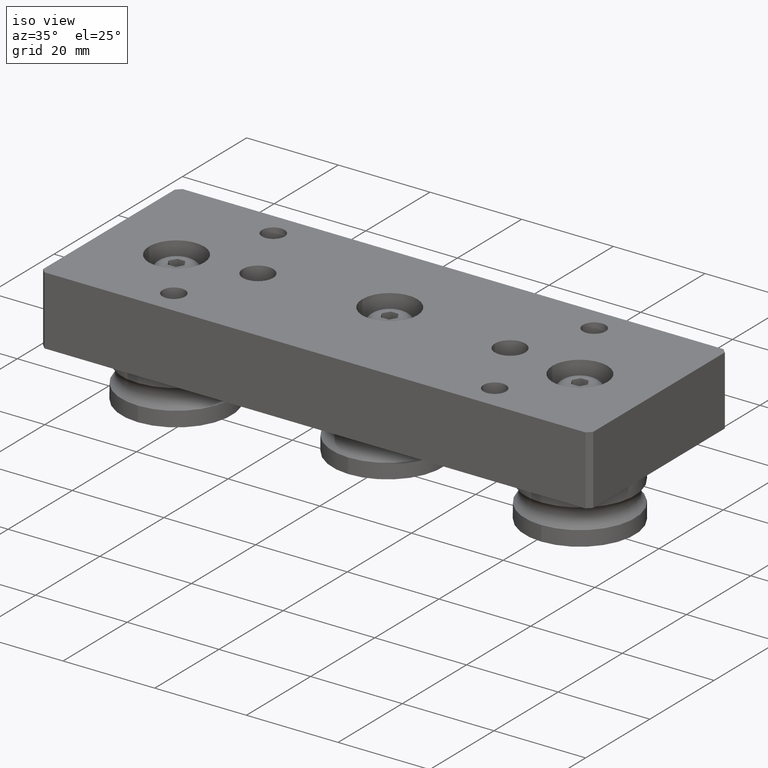
[diagram: clean part render]
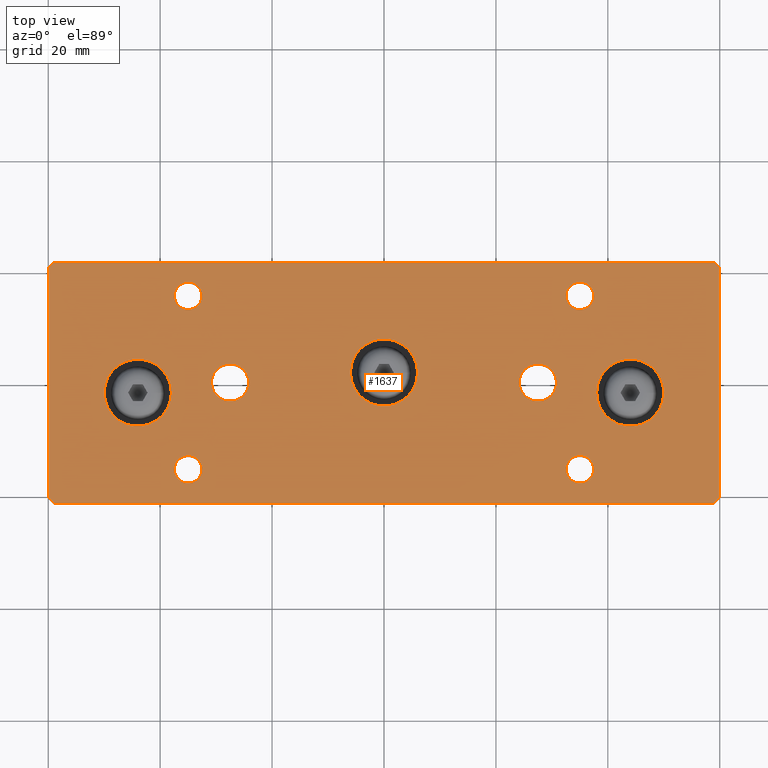
[diagram: tour spotlight — one face highlighted and labeled with its STEP entity id]
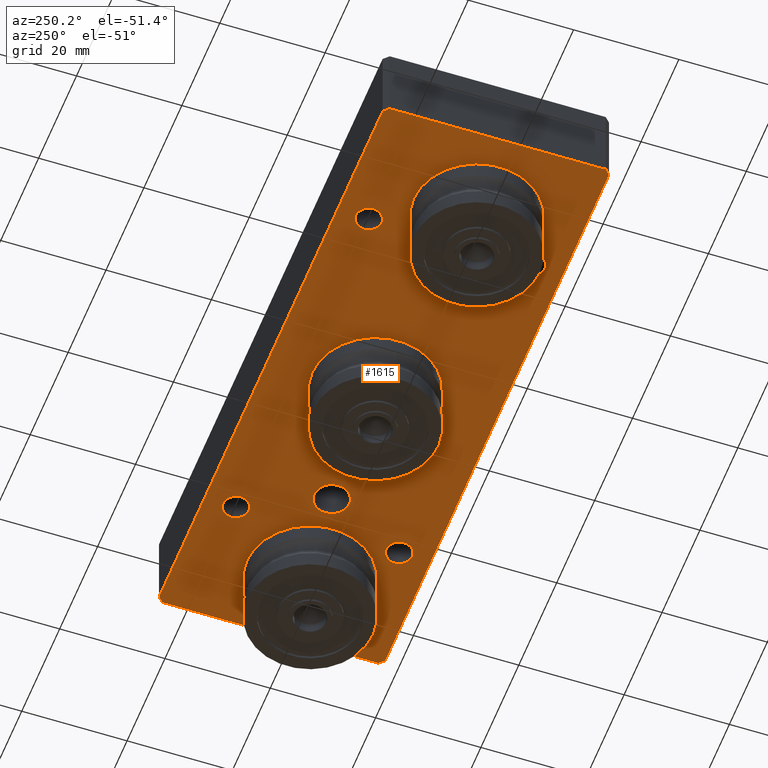
[diagram: tour spotlight — one face highlighted and labeled with its STEP entity id]
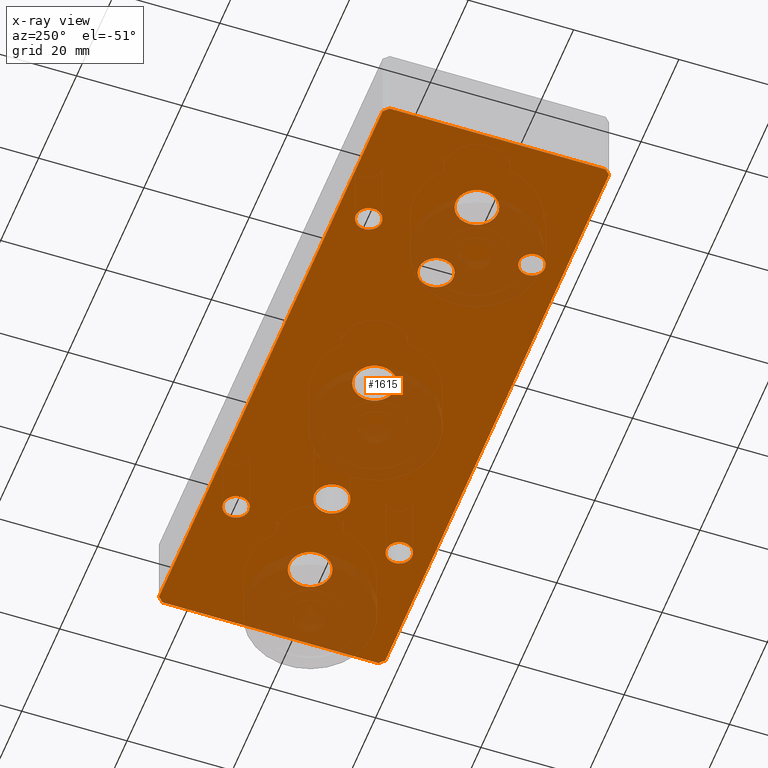
[diagram: x-ray of the same camera — body ghosted, this tour face saturated]
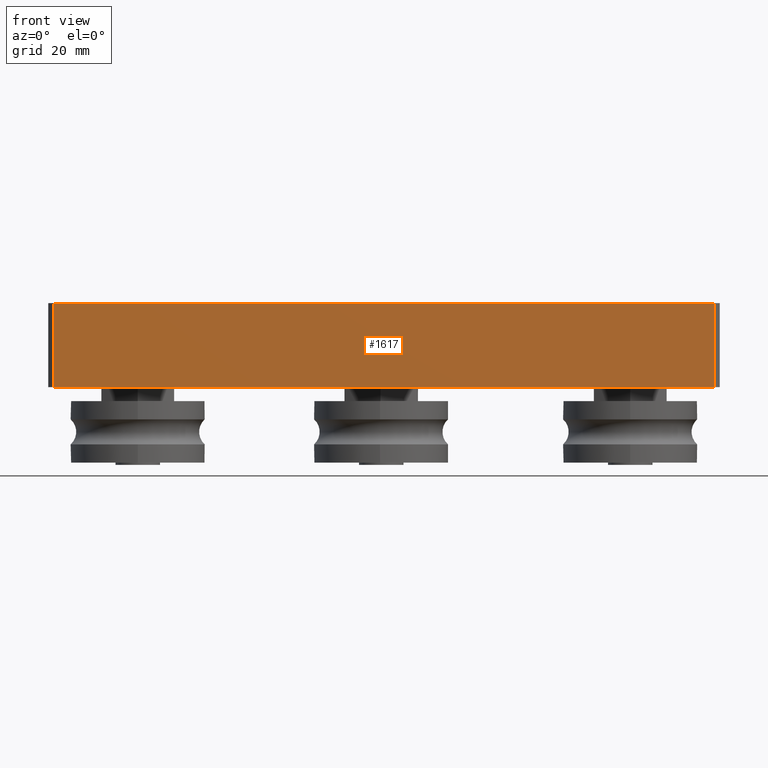
[diagram: tour spotlight — one face highlighted and labeled with its STEP entity id]
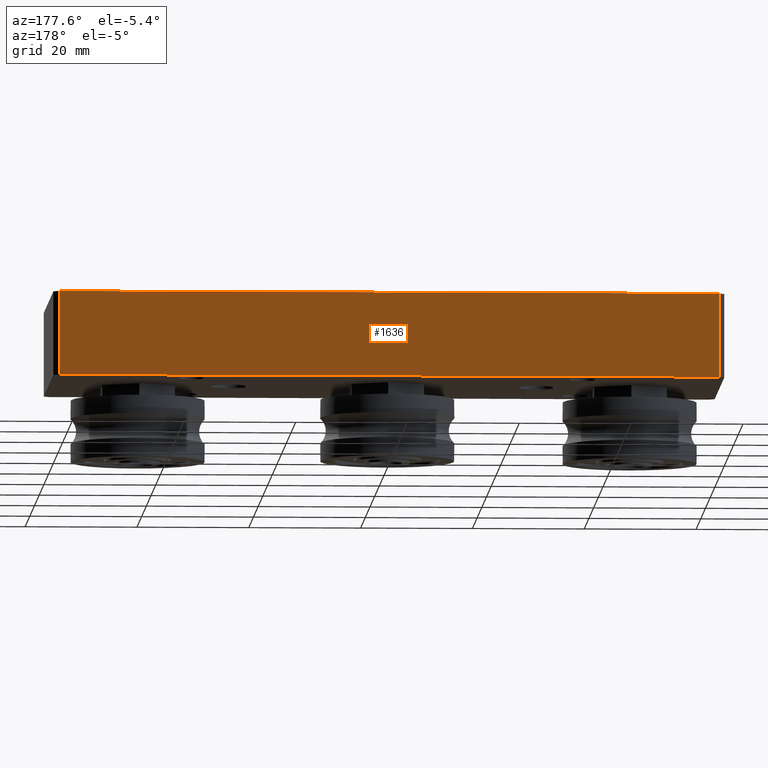
[diagram: tour spotlight — one face highlighted and labeled with its STEP entity id]
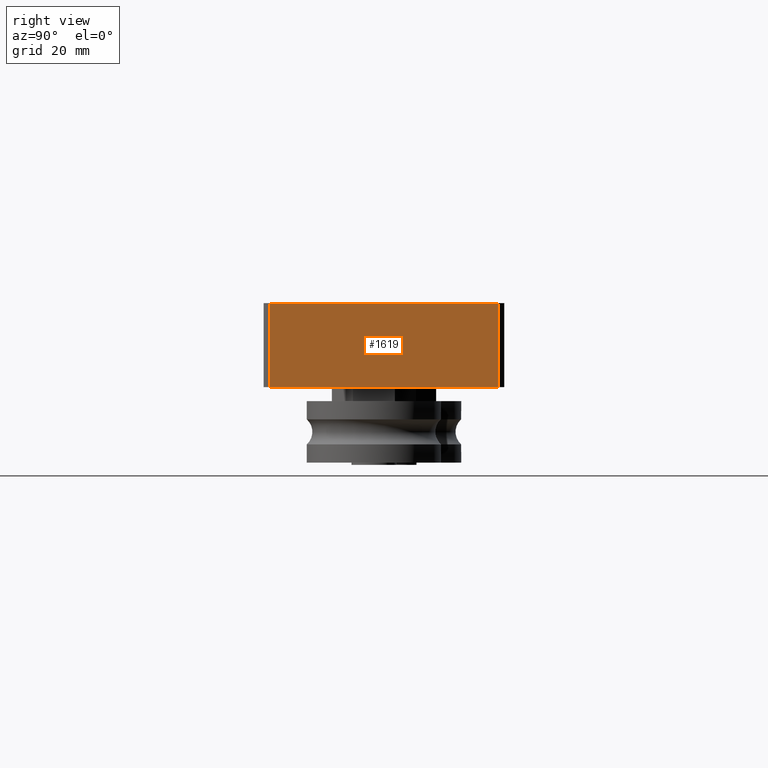
[diagram: tour spotlight — one face highlighted and labeled with its STEP entity id]
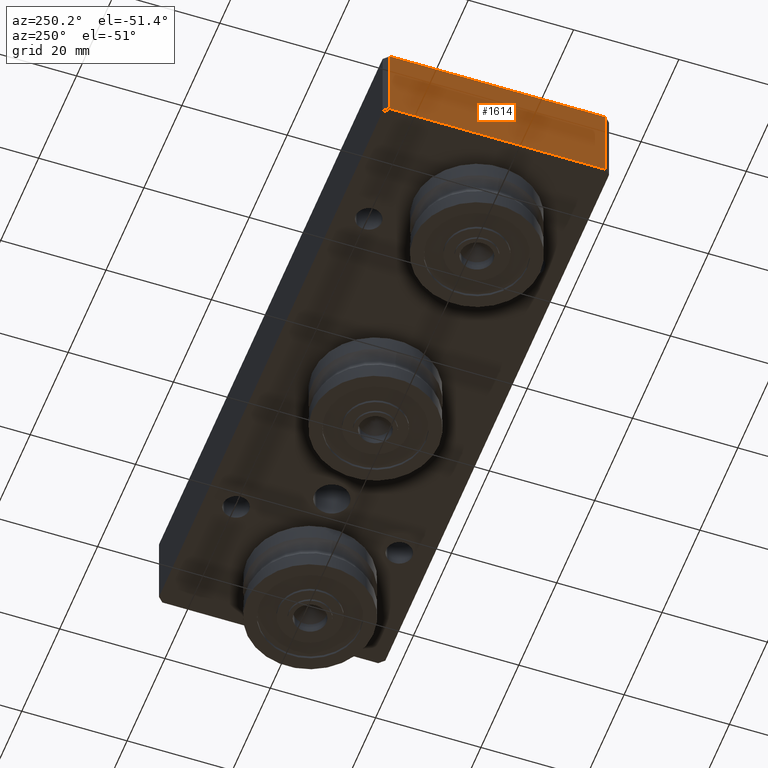
[diagram: tour spotlight — one face highlighted and labeled with its STEP entity id]
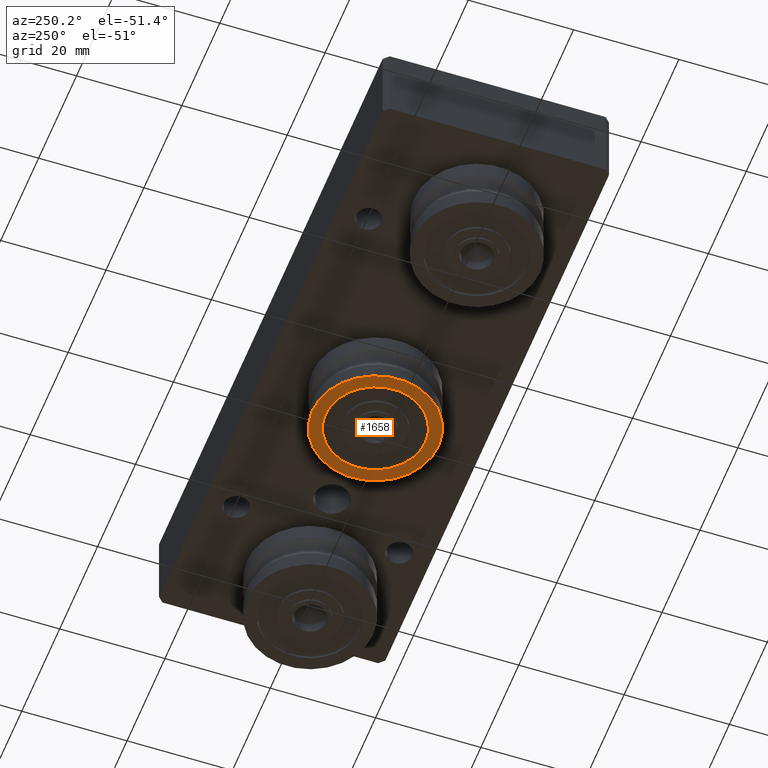
[diagram: tour spotlight — one face highlighted and labeled with its STEP entity id]
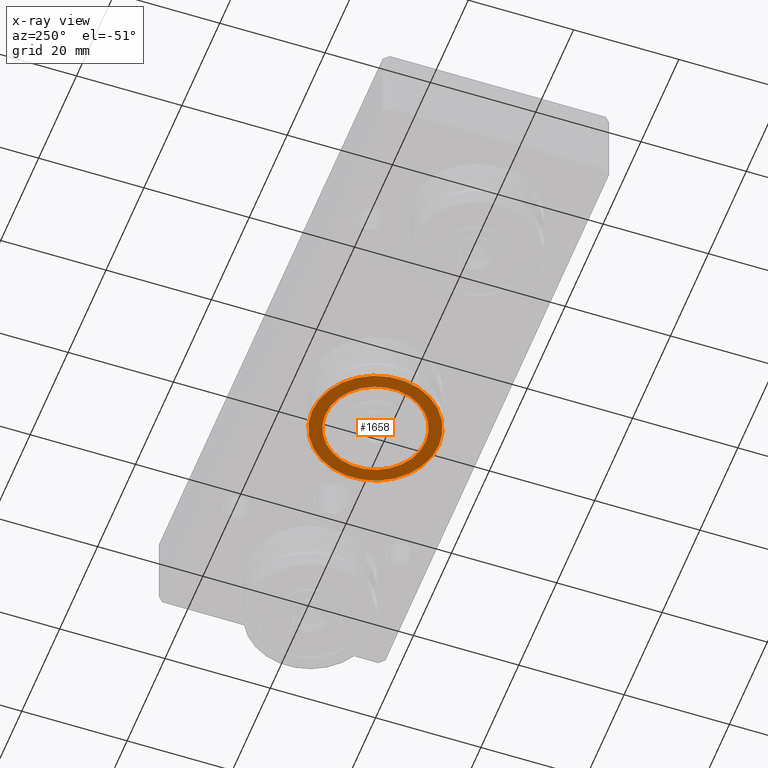
[diagram: x-ray of the same camera — body ghosted, this tour face saturated]
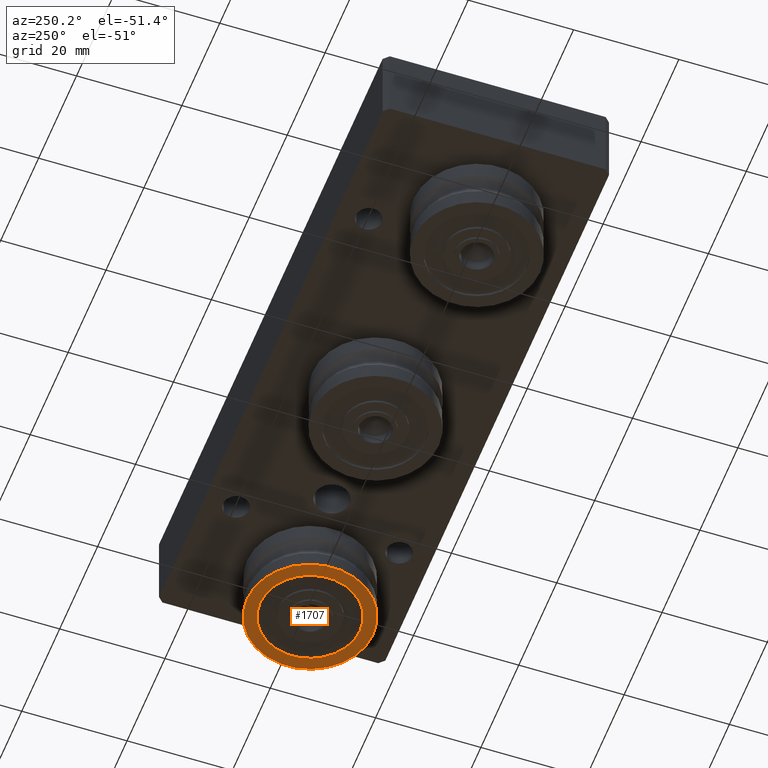
[diagram: tour spotlight — one face highlighted and labeled with its STEP entity id]
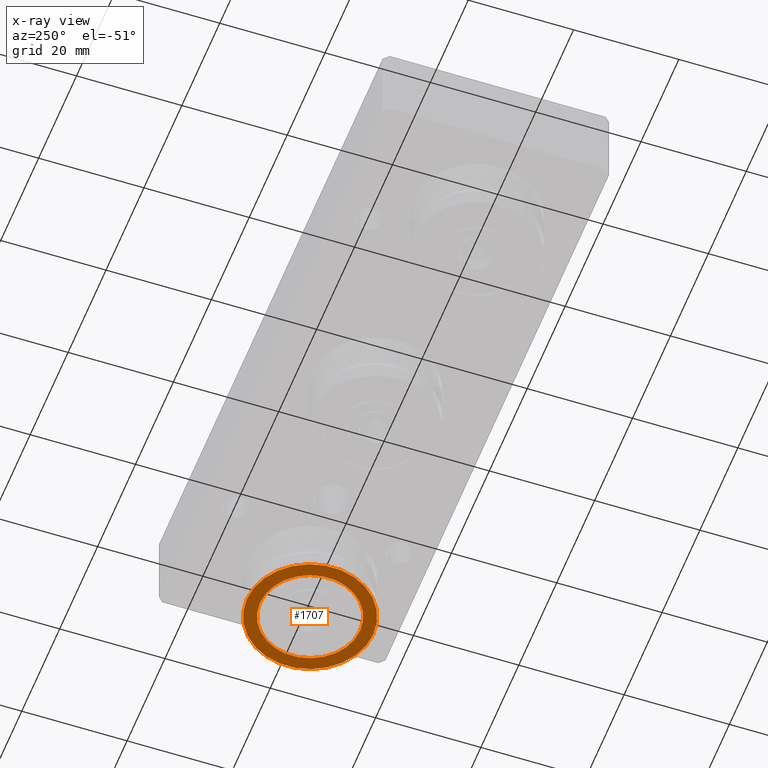
[diagram: x-ray of the same camera — body ghosted, this tour face saturated]
A machine part: a face-by-face anatomy tour. The part has 172 B-rep faces; the first image is the clean iso view, then the 8 largest visible faces are spotlighted one at a time (largest first), each with its STEP entity span.

Face 1 — top view, entity #1637. In plain terms, the highlighted planar face has unit normal (0, 0, 1).
Definition (entity closure, byte-faithful):
#166=FACE_BOUND('',#430,.T.);
#167=FACE_BOUND('',#431,.T.);
#168=FACE_BOUND('',#432,.T.);
#169=FACE_BOUND('',#433,.T.);
#170=FACE_BOUND('',#434,.T.);
#171=FACE_BOUND('',#435,.T.);
#172=FACE_BOUND('',#436,.T.);
#173=FACE_BOUND('',#437,.T.);
#174=FACE_BOUND('',#438,.T.);
#208=CIRCLE('',#1948,2.4585);
#209=CIRCLE('',#1950,2.4585);
#210=CIRCLE('',#1952,2.4585);
#211=CIRCLE('',#1954,2.4585);
#212=CIRCLE('',#1956,3.3235);
#213=CIRCLE('',#1958,3.3235);
#216=CIRCLE('',#1963,6.);
#219=CIRCLE('',#1969,6.);
#222=CIRCLE('',#1975,6.);
#313=FACE_OUTER_BOUND('',#429,.T.);
#429=EDGE_LOOP('',(#1234,#1235,#1236,#1237,#1238,#1239,#1240,#1241));
#430=EDGE_LOOP('',(#1242));
#431=EDGE_LOOP('',(#1243));
#432=EDGE_LOOP('',(#1244));
#433=EDGE_LOOP('',(#1245));
#434=EDGE_LOOP('',(#1246));
#435=EDGE_LOOP('',(#1247));
#436=EDGE_LOOP('',(#1248));
#437=EDGE_LOOP('',(#1249));
#438=EDGE_LOOP('',(#1250));
#542=LINE('',#2703,#658);
#548=LINE('',#2714,#664);
#556=LINE('',#2748,#672);
#558=LINE('',#2752,#674);
#559=LINE('',#2756,#675);
#562=LINE('',#2761,#678);
#564=LINE('',#2764,#680);
#577=LINE('',#2823,#693);
#658=VECTOR('',#2152,10.);
#664=VECTOR('',#2160,10.);
#672=VECTOR('',#2190,10.);
#674=VECTOR('',#2194,10.);
#675=VECTOR('',#2197,10.);
#678=VECTOR('',#2202,10.);
#680=VECTOR('',#2206,10.);
#693=VECTOR('',#2281,10.);
#774=VERTEX_POINT('',#2701);
#775=VERTEX_POINT('',#2702);
#779=VERTEX_POINT('',#2712);
#794=VERTEX_POINT('',#2746);
#795=VERTEX_POINT('',#2750);
#796=VERTEX_POINT('',#2754);
#797=VERTEX_POINT('',#2755);
#798=VERTEX_POINT('',#2760);
#799=VERTEX_POINT('',#2766);
#800=VERTEX_POINT('',#2770);
#801=VERTEX_POINT('',#2774);
#802=VERTEX_POINT('',#2778);
#803=VERTEX_POINT('',#2782);
#804=VERTEX_POINT('',#2786);
#807=VERTEX_POINT('',#2795);
#810=VERTEX_POINT('',#2806);
#813=VERTEX_POINT('',#2817);
#918=EDGE_CURVE('',#774,#775,#542,.T.);
#924=EDGE_CURVE('',#774,#779,#548,.T.);
#941=EDGE_CURVE('',#794,#779,#556,.T.);
#943=EDGE_CURVE('',#794,#795,#558,.T.);
#944=EDGE_CURVE('',#796,#797,#559,.T.);
#947=EDGE_CURVE('',#798,#797,#562,.T.);
#949=EDGE_CURVE('',#798,#795,#564,.T.);
#950=EDGE_CURVE('',#799,#799,#208,.T.);
#952=EDGE_CURVE('',#800,#800,#209,.T.);
#954=EDGE_CURVE('',#801,#801,#210,.T.);
#956=EDGE_CURVE('',#802,#802,#211,.T.);
#958=EDGE_CURVE('',#803,#803,#212,.T.);
#960=EDGE_CURVE('',#804,#804,#213,.T.);
#964=EDGE_CURVE('',#807,#807,#216,.T.);
#969=EDGE_CURVE('',#810,#810,#219,.T.);
#974=EDGE_CURVE('',#813,#813,#222,.T.);
#977=EDGE_CURVE('',#796,#775,#577,.T.);
#1234=ORIENTED_EDGE('',*,*,#918,.F.);
#1235=ORIENTED_EDGE('',*,*,#924,.T.);
#1236=ORIENTED_EDGE('',*,*,#941,.F.);
#1237=ORIENTED_EDGE('',*,*,#943,.T.);
#1238=ORIENTED_EDGE('',*,*,#949,.F.);
#1239=ORIENTED_EDGE('',*,*,#947,.T.);
#1240=ORIENTED_EDGE('',*,*,#944,.F.);
#1241=ORIENTED_EDGE('',*,*,#977,.T.);
#1242=ORIENTED_EDGE('',*,*,#950,.T.);
#1243=ORIENTED_EDGE('',*,*,#952,.T.);
#1244=ORIENTED_EDGE('',*,*,#954,.T.);
#1245=ORIENTED_EDGE('',*,*,#956,.T.);
#1246=ORIENTED_EDGE('',*,*,#958,.T.);
#1247=ORIENTED_EDGE('',*,*,#960,.T.);
#1248=ORIENTED_EDGE('',*,*,#964,.T.);
#1249=ORIENTED_EDGE('',*,*,#969,.T.);
#1250=ORIENTED_EDGE('',*,*,#974,.T.);
#1569=PLANE('',#1978);
#1637=ADVANCED_FACE('',(#313,#166,#167,#168,#169,#170,#171,#172,#173,#174),
#1569,.T.);
#1948=AXIS2_PLACEMENT_3D('',#2767,#2209,#2210);
#1950=AXIS2_PLACEMENT_3D('',#2771,#2214,#2215);
#1952=AXIS2_PLACEMENT_3D('',#2775,#2219,#2220);
#1954=AXIS2_PLACEMENT_3D('',#2779,#2224,#2225);
#1956=AXIS2_PLACEMENT_3D('',#2783,#2229,#2230);
#1958=AXIS2_PLACEMENT_3D('',#2787,#2234,#2235);
#1963=AXIS2_PLACEMENT_3D('',#2796,#2245,#2246);
#1969=AXIS2_PLACEMENT_3D('',#2807,#2259,#2260);
#1975=AXIS2_PLACEMENT_3D('',#2818,#2273,#2274);
#1978=AXIS2_PLACEMENT_3D('',#2824,#2282,#2283);
#2152=DIRECTION('',(0.707106781186548,0.707106781186548,0.));
#2160=DIRECTION('',(4.13106241720989E-16,-1.,0.));
#2190=DIRECTION('',(-0.707106781186546,0.707106781186549,0.));
#2194=DIRECTION('',(1.,0.,0.));
#2197=DIRECTION('',(0.707106781186546,-0.707106781186549,0.));
#2202=DIRECTION('',(0.,1.,0.));
#2206=DIRECTION('',(-0.707106781186546,-0.707106781186549,0.));
#2209=DIRECTION('center_axis',(0.,0.,-1.));
#2210=DIRECTION('ref_axis',(1.,0.,0.));
#2214=DIRECTION('center_axis',(0.,0.,-1.));
#2215=DIRECTION('ref_axis',(1.,0.,0.));
#2219=DIRECTION('center_axis',(0.,0.,-1.));
#2220=DIRECTION('ref_axis',(1.,0.,0.));
#2224=DIRECTION('center_axis',(0.,0.,-1.));
#2225=DIRECTION('ref_axis',(1.,0.,0.));
#2229=DIRECTION('center_axis',(0.,0.,-1.));
#2230=DIRECTION('ref_axis',(1.,0.,0.));
#2234=DIRECTION('center_axis',(0.,0.,-1.));
#2235=DIRECTION('ref_axis',(1.,0.,0.));
#2245=DIRECTION('center_axis',(0.,0.,-1.));
#2246=DIRECTION('ref_axis',(1.,0.,0.));
#2259=DIRECTION('center_axis',(0.,0.,-1.));
#2260=DIRECTION('ref_axis',(1.,0.,0.));
#2273=DIRECTION('center_axis',(0.,0.,-1.));
#2274=DIRECTION('ref_axis',(1.,0.,0.));
#2281=DIRECTION('',(-1.,-1.11022302462516E-16,0.));
#2282=DIRECTION('center_axis',(0.,0.,1.));
#2283=DIRECTION('ref_axis',(1.,0.,0.));
#2701=CARTESIAN_POINT('',(-60.,20.5,7.5));
#2702=CARTESIAN_POINT('',(-59.,21.5,7.5));
#2703=CARTESIAN_POINT('',(-49.875,30.625,7.5));
#2712=CARTESIAN_POINT('',(-60.,-20.5,7.5));
#2714=CARTESIAN_POINT('',(-60.,21.5,7.5));
#2746=CARTESIAN_POINT('',(-59.,-21.5,7.5));
#2748=CARTESIAN_POINT('',(-49.875,-30.625,7.5));
#2750=CARTESIAN_POINT('',(59.,-21.5,7.5));
#2752=CARTESIAN_POINT('',(-60.,-21.5,7.5));
#2754=CARTESIAN_POINT('',(59.,21.5,7.5));
#2755=CARTESIAN_POINT('',(60.,20.5,7.5));
#2756=CARTESIAN_POINT('',(49.8750000000001,30.625,7.5));
#2760=CARTESIAN_POINT('',(60.,-20.5,7.5));
#2761=CARTESIAN_POINT('',(60.,-21.5,7.5));
#2764=CARTESIAN_POINT('',(49.8750000000001,-30.625,7.5));
#2766=CARTESIAN_POINT('',(32.5415,15.5,7.5));
#2767=CARTESIAN_POINT('Origin',(35.,15.5,7.5));
#2770=CARTESIAN_POINT('',(-37.4585,15.5,7.5));
#2771=CARTESIAN_POINT('Origin',(-35.,15.5,7.5));
#2774=CARTESIAN_POINT('',(-37.4585,-15.5,7.5));
#2775=CARTESIAN_POINT('Origin',(-35.,-15.5,7.5));
#2778=CARTESIAN_POINT('',(32.5415,-15.5,7.5));
#2779=CARTESIAN_POINT('Origin',(35.,-15.5,7.5));
#2782=CARTESIAN_POINT('',(-30.8235,-4.07011363696623E-16,7.5));
#2783=CARTESIAN_POINT('Origin',(-27.5,0.,7.5));
#2786=CARTESIAN_POINT('',(24.1765,8.47477283330463E-15,7.5));
#2787=CARTESIAN_POINT('Origin',(27.5,8.88178419700125E-15,7.5));
#2795=CARTESIAN_POINT('',(-6.,1.8,7.5));
#2796=CARTESIAN_POINT('Origin',(0.,1.8,7.5));
#2806=CARTESIAN_POINT('',(-50.,-1.8,7.5));
#2807=CARTESIAN_POINT('Origin',(-44.,-1.8,7.5));
#2817=CARTESIAN_POINT('',(38.,-1.8,7.5));
#2818=CARTESIAN_POINT('Origin',(44.,-1.8,7.5));
#2823=CARTESIAN_POINT('',(60.,21.5,7.5));
#2824=CARTESIAN_POINT('Origin',(2.66453525910038E-14,0.,7.5));

Face 2 — auxiliary view, entity #1615. An x-ray twin of the same camera follows (body ghosted, this face saturated) — the face is partly hidden behind the body. In plain terms, the highlighted planar face has unit normal (0, 0, -1).
Definition (entity closure, byte-faithful):
#154=FACE_BOUND('',#396,.T.);
#155=FACE_BOUND('',#397,.T.);
#156=FACE_BOUND('',#398,.T.);
#157=FACE_BOUND('',#399,.T.);
#158=FACE_BOUND('',#400,.T.);
#159=FACE_BOUND('',#401,.T.);
#160=FACE_BOUND('',#402,.T.);
#161=FACE_BOUND('',#403,.T.);
#162=FACE_BOUND('',#404,.T.);
#199=CIRCLE('',#1933,2.4585);
#200=CIRCLE('',#1934,2.4585);
#201=CIRCLE('',#1935,2.4585);
#202=CIRCLE('',#1936,2.4585);
#203=CIRCLE('',#1937,3.3235);
#204=CIRCLE('',#1938,3.3235);
#205=CIRCLE('',#1939,4.);
#206=CIRCLE('',#1940,4.);
#207=CIRCLE('',#1941,4.);
#291=FACE_OUTER_BOUND('',#395,.T.);
#395=EDGE_LOOP('',(#1139,#1140,#1141,#1142,#1143,#1144,#1145,#1146));
#396=EDGE_LOOP('',(#1147));
#397=EDGE_LOOP('',(#1148));
#398=EDGE_LOOP('',(#1149));
#399=EDGE_LOOP('',(#1150));
#400=EDGE_LOOP('',(#1151));
#401=EDGE_LOOP('',(#1152));
#402=EDGE_LOOP('',(#1153));
#403=EDGE_LOOP('',(#1154));
#404=EDGE_LOOP('',(#1155));
#544=LINE('',#2707,#660);
#546=LINE('',#2711,#662);
#549=LINE('',#2717,#665);
#550=LINE('',#2719,#666);
#551=LINE('',#2721,#667);
#552=LINE('',#2723,#668);
#553=LINE('',#2725,#669);
#554=LINE('',#2726,#670);
#660=VECTOR('',#2154,10.);
#662=VECTOR('',#2158,10.);
#665=VECTOR('',#2163,10.);
#666=VECTOR('',#2164,10.);
#667=VECTOR('',#2165,10.);
#668=VECTOR('',#2166,10.);
#669=VECTOR('',#2167,10.);
#670=VECTOR('',#2168,10.);
#776=VERTEX_POINT('',#2704);
#777=VERTEX_POINT('',#2706);
#778=VERTEX_POINT('',#2710);
#780=VERTEX_POINT('',#2716);
#781=VERTEX_POINT('',#2718);
#782=VERTEX_POINT('',#2720);
#783=VERTEX_POINT('',#2722);
#784=VERTEX_POINT('',#2724);
#785=VERTEX_POINT('',#2727);
#786=VERTEX_POINT('',#2729);
#787=VERTEX_POINT('',#2731);
#788=VERTEX_POINT('',#2733);
#789=VERTEX_POINT('',#2735);
#790=VERTEX_POINT('',#2737);
#791=VERTEX_POINT('',#2739);
#792=VERTEX_POINT('',#2741);
#793=VERTEX_POINT('',#2743);
#920=EDGE_CURVE('',#776,#777,#544,.T.);
#922=EDGE_CURVE('',#778,#777,#546,.T.);
#925=EDGE_CURVE('',#776,#780,#549,.T.);
#926=EDGE_CURVE('',#781,#780,#550,.T.);
#927=EDGE_CURVE('',#781,#782,#551,.T.);
#928=EDGE_CURVE('',#783,#782,#552,.T.);
#929=EDGE_CURVE('',#783,#784,#553,.T.);
#930=EDGE_CURVE('',#778,#784,#554,.T.);
#931=EDGE_CURVE('',#785,#785,#199,.T.);
#932=EDGE_CURVE('',#786,#786,#200,.T.);
#933=EDGE_CURVE('',#787,#787,#201,.T.);
#934=EDGE_CURVE('',#788,#788,#202,.T.);
#935=EDGE_CURVE('',#789,#789,#203,.T.);
#936=EDGE_CURVE('',#790,#790,#204,.T.);
#937=EDGE_CURVE('',#791,#791,#205,.T.);
#938=EDGE_CURVE('',#792,#792,#206,.T.);
#939=EDGE_CURVE('',#793,#793,#207,.T.);
#1139=ORIENTED_EDGE('',*,*,#920,.F.);
#1140=ORIENTED_EDGE('',*,*,#925,.T.);
#1141=ORIENTED_EDGE('',*,*,#926,.F.);
#1142=ORIENTED_EDGE('',*,*,#927,.T.);
#1143=ORIENTED_EDGE('',*,*,#928,.F.);
#1144=ORIENTED_EDGE('',*,*,#929,.T.);
#1145=ORIENTED_EDGE('',*,*,#930,.F.);
#1146=ORIENTED_EDGE('',*,*,#922,.T.);
#1147=ORIENTED_EDGE('',*,*,#931,.T.);
#1148=ORIENTED_EDGE('',*,*,#932,.T.);
#1149=ORIENTED_EDGE('',*,*,#933,.T.);
#1150=ORIENTED_EDGE('',*,*,#934,.T.);
#1151=ORIENTED_EDGE('',*,*,#935,.T.);
#1152=ORIENTED_EDGE('',*,*,#936,.T.);
#1153=ORIENTED_EDGE('',*,*,#937,.T.);
#1154=ORIENTED_EDGE('',*,*,#938,.T.);
#1155=ORIENTED_EDGE('',*,*,#939,.T.);
#1559=PLANE('',#1932);
#1615=ADVANCED_FACE('',(#291,#154,#155,#156,#157,#158,#159,#160,#161,#162),
#1559,.T.);
#1932=AXIS2_PLACEMENT_3D('',#2715,#2161,#2162);
#1933=AXIS2_PLACEMENT_3D('',#2728,#2169,#2170);
#1934=AXIS2_PLACEMENT_3D('',#2730,#2171,#2172);
#1935=AXIS2_PLACEMENT_3D('',#2732,#2173,#2174);
#1936=AXIS2_PLACEMENT_3D('',#2734,#2175,#2176);
#1937=AXIS2_PLACEMENT_3D('',#2736,#2177,#2178);
#1938=AXIS2_PLACEMENT_3D('',#2738,#2179,#2180);
#1939=AXIS2_PLACEMENT_3D('',#2740,#2181,#2182);
#1940=AXIS2_PLACEMENT_3D('',#2742,#2183,#2184);
#1941=AXIS2_PLACEMENT_3D('',#2744,#2185,#2186);
#2154=DIRECTION('',(-0.707106781186548,-0.707106781186548,0.));
#2158=DIRECTION('',(-4.13106241720989E-16,1.,0.));
#2161=DIRECTION('center_axis',(0.,0.,-1.));
#2162=DIRECTION('ref_axis',(-1.,0.,0.));
#2163=DIRECTION('',(1.,1.11022302462516E-16,0.));
#2164=DIRECTION('',(-0.707106781186546,0.707106781186549,0.));
#2165=DIRECTION('',(0.,-1.,0.));
#2166=DIRECTION('',(0.707106781186546,0.707106781186549,0.));
#2167=DIRECTION('',(-1.,0.,0.));
#2168=DIRECTION('',(0.707106781186546,-0.707106781186549,0.));
#2169=DIRECTION('center_axis',(0.,0.,1.));
#2170=DIRECTION('ref_axis',(1.,0.,0.));
#2171=DIRECTION('center_axis',(0.,0.,1.));
#2172=DIRECTION('ref_axis',(1.,0.,0.));
#2173=DIRECTION('center_axis',(0.,0.,1.));
#2174=DIRECTION('ref_axis',(1.,0.,0.));
#2175=DIRECTION('center_axis',(0.,0.,1.));
#2176=DIRECTION('ref_axis',(1.,0.,0.));
#2177=DIRECTION('center_axis',(0.,0.,1.));
#2178=DIRECTION('ref_axis',(1.,0.,0.));
#2179=DIRECTION('center_axis',(0.,0.,1.));
#2180=DIRECTION('ref_axis',(1.,0.,0.));
#2181=DIRECTION('center_axis',(0.,0.,1.));
#2182=DIRECTION('ref_axis',(1.,0.,0.));
#2183=DIRECTION('center_axis',(0.,0.,1.));
#2184=DIRECTION('ref_axis',(1.,0.,0.));
#2185=DIRECTION('center_axis',(0.,0.,1.));
#2186=DIRECTION('ref_axis',(1.,0.,0.));
#2704=CARTESIAN_POINT('',(-59.,21.5,-7.5));
#2706=CARTESIAN_POINT('',(-60.,20.5,-7.5));
#2707=CARTESIAN_POINT('',(-49.875,30.625,-7.5));
#2710=CARTESIAN_POINT('',(-60.,-20.5,-7.5));
#2711=CARTESIAN_POINT('',(-60.,21.5,-7.5));
#2715=CARTESIAN_POINT('Origin',(2.66453525910038E-14,0.,-7.5));
#2716=CARTESIAN_POINT('',(59.,21.5,-7.5));
#2717=CARTESIAN_POINT('',(60.,21.5,-7.5));
#2718=CARTESIAN_POINT('',(60.,20.5,-7.5));
#2719=CARTESIAN_POINT('',(49.8750000000001,30.625,-7.5));
#2720=CARTESIAN_POINT('',(60.,-20.5,-7.5));
#2721=CARTESIAN_POINT('',(60.,-21.5,-7.5));
#2722=CARTESIAN_POINT('',(59.,-21.5,-7.5));
#2723=CARTESIAN_POINT('',(49.8750000000001,-30.625,-7.5));
#2724=CARTESIAN_POINT('',(-59.,-21.5,-7.5));
#2725=CARTESIAN_POINT('',(-60.,-21.5,-7.5));
#2726=CARTESIAN_POINT('',(-49.875,-30.625,-7.5));
#2727=CARTESIAN_POINT('',(32.5415,15.5,-7.5));
#2728=CARTESIAN_POINT('Origin',(35.,15.5,-7.5));
#2729=CARTESIAN_POINT('',(-37.4585,15.5,-7.5));
#2730=CARTESIAN_POINT('Origin',(-35.,15.5,-7.5));
#2731=CARTESIAN_POINT('',(-37.4585,-15.5,-7.5));
#2732=CARTESIAN_POINT('Origin',(-35.,-15.5,-7.5));
#2733=CARTESIAN_POINT('',(32.5415,-15.5,-7.5));
#2734=CARTESIAN_POINT('Origin',(35.,-15.5,-7.5));
#2735=CARTESIAN_POINT('',(-30.8235,-4.07011363696623E-16,-7.5));
#2736=CARTESIAN_POINT('Origin',(-27.5,0.,-7.5));
#2737=CARTESIAN_POINT('',(24.1765,8.47477283330463E-15,-7.5));
#2738=CARTESIAN_POINT('Origin',(27.5,8.88178419700125E-15,-7.5));
#2739=CARTESIAN_POINT('',(-4.,1.8,-7.5));
#2740=CARTESIAN_POINT('Origin',(0.,1.8,-7.5));
#2741=CARTESIAN_POINT('',(-48.,-1.8,-7.5));
#2742=CARTESIAN_POINT('Origin',(-44.,-1.8,-7.5));
#2743=CARTESIAN_POINT('',(40.,-1.8,-7.5));
#2744=CARTESIAN_POINT('Origin',(44.,-1.8,-7.5));

Face 3 — front view, entity #1617. In plain terms, the highlighted planar face has unit normal (0, -1, 0).
Definition (entity closure, byte-faithful):
#293=FACE_OUTER_BOUND('',#406,.T.);
#406=EDGE_LOOP('',(#1160,#1161,#1162,#1163));
#553=LINE('',#2725,#669);
#555=LINE('',#2747,#671);
#557=LINE('',#2751,#673);
#558=LINE('',#2752,#674);
#669=VECTOR('',#2167,10.);
#671=VECTOR('',#2189,10.);
#673=VECTOR('',#2193,10.);
#674=VECTOR('',#2194,10.);
#783=VERTEX_POINT('',#2722);
#784=VERTEX_POINT('',#2724);
#794=VERTEX_POINT('',#2746);
#795=VERTEX_POINT('',#2750);
#929=EDGE_CURVE('',#783,#784,#553,.T.);
#940=EDGE_CURVE('',#784,#794,#555,.T.);
#942=EDGE_CURVE('',#795,#783,#557,.T.);
#943=EDGE_CURVE('',#794,#795,#558,.T.);
#1160=ORIENTED_EDGE('',*,*,#940,.F.);
#1161=ORIENTED_EDGE('',*,*,#929,.F.);
#1162=ORIENTED_EDGE('',*,*,#942,.F.);
#1163=ORIENTED_EDGE('',*,*,#943,.F.);
#1561=PLANE('',#1943);
#1617=ADVANCED_FACE('',(#293),#1561,.T.);
#1943=AXIS2_PLACEMENT_3D('',#2749,#2191,#2192);
#2167=DIRECTION('',(-1.,0.,0.));
#2189=DIRECTION('',(0.,0.,1.));
#2191=DIRECTION('center_axis',(0.,-1.,0.));
#2192=DIRECTION('ref_axis',(1.,0.,0.));
#2193=DIRECTION('',(0.,0.,-1.));
#2194=DIRECTION('',(1.,0.,0.));
#2722=CARTESIAN_POINT('',(59.,-21.5,-7.5));
#2724=CARTESIAN_POINT('',(-59.,-21.5,-7.5));
#2725=CARTESIAN_POINT('',(-60.,-21.5,-7.5));
#2746=CARTESIAN_POINT('',(-59.,-21.5,7.5));
#2747=CARTESIAN_POINT('',(-59.,-21.5,0.));
#2749=CARTESIAN_POINT('Origin',(-60.,-21.5,0.));
#2750=CARTESIAN_POINT('',(59.,-21.5,7.5));
#2751=CARTESIAN_POINT('',(59.,-21.5,0.));
#2752=CARTESIAN_POINT('',(-60.,-21.5,7.5));

Face 4 — auxiliary view, entity #1636. In plain terms, the highlighted planar face has unit normal (-0, 1, 0).
Definition (entity closure, byte-faithful):
#312=FACE_OUTER_BOUND('',#428,.T.);
#428=EDGE_LOOP('',(#1230,#1231,#1232,#1233));
#543=LINE('',#2705,#659);
#549=LINE('',#2717,#665);
#561=LINE('',#2758,#677);
#577=LINE('',#2823,#693);
#659=VECTOR('',#2153,10.);
#665=VECTOR('',#2163,10.);
#677=VECTOR('',#2199,10.);
#693=VECTOR('',#2281,10.);
#775=VERTEX_POINT('',#2702);
#776=VERTEX_POINT('',#2704);
#780=VERTEX_POINT('',#2716);
#796=VERTEX_POINT('',#2754);
#919=EDGE_CURVE('',#775,#776,#543,.T.);
#925=EDGE_CURVE('',#776,#780,#549,.T.);
#946=EDGE_CURVE('',#780,#796,#561,.T.);
#977=EDGE_CURVE('',#796,#775,#577,.T.);
#1230=ORIENTED_EDGE('',*,*,#919,.F.);
#1231=ORIENTED_EDGE('',*,*,#977,.F.);
#1232=ORIENTED_EDGE('',*,*,#946,.F.);
#1233=ORIENTED_EDGE('',*,*,#925,.F.);
#1568=PLANE('',#1977);
#1636=ADVANCED_FACE('',(#312),#1568,.T.);
#1977=AXIS2_PLACEMENT_3D('',#2822,#2279,#2280);
#2153=DIRECTION('',(0.,0.,-1.));
#2163=DIRECTION('',(1.,1.11022302462516E-16,0.));
#2199=DIRECTION('',(0.,0.,1.));
#2279=DIRECTION('center_axis',(-1.11022302462516E-16,1.,0.));
#2280=DIRECTION('ref_axis',(-1.,-1.11022302462516E-16,0.));
#2281=DIRECTION('',(-1.,-1.11022302462516E-16,0.));
#2702=CARTESIAN_POINT('',(-59.,21.5,7.5));
#2704=CARTESIAN_POINT('',(-59.,21.5,-7.5));
#2705=CARTESIAN_POINT('',(-59.,21.5,0.));
#2716=CARTESIAN_POINT('',(59.,21.5,-7.5));
#2717=CARTESIAN_POINT('',(60.,21.5,-7.5));
#2754=CARTESIAN_POINT('',(59.,21.5,7.5));
#2758=CARTESIAN_POINT('',(59.,21.5,0.));
#2822=CARTESIAN_POINT('Origin',(60.,21.5,0.));
#2823=CARTESIAN_POINT('',(60.,21.5,7.5));

Face 5 — right view, entity #1619. In plain terms, the highlighted planar face has unit normal (1, 0, 0).
Definition (entity closure, byte-faithful):
#295=FACE_OUTER_BOUND('',#408,.T.);
#408=EDGE_LOOP('',(#1168,#1169,#1170,#1171));
#551=LINE('',#2721,#667);
#560=LINE('',#2757,#676);
#562=LINE('',#2761,#678);
#563=LINE('',#2762,#679);
#667=VECTOR('',#2165,10.);
#676=VECTOR('',#2198,10.);
#678=VECTOR('',#2202,10.);
#679=VECTOR('',#2203,10.);
#781=VERTEX_POINT('',#2718);
#782=VERTEX_POINT('',#2720);
#797=VERTEX_POINT('',#2755);
#798=VERTEX_POINT('',#2760);
#927=EDGE_CURVE('',#781,#782,#551,.T.);
#945=EDGE_CURVE('',#797,#781,#560,.T.);
#947=EDGE_CURVE('',#798,#797,#562,.T.);
#948=EDGE_CURVE('',#782,#798,#563,.T.);
#1168=ORIENTED_EDGE('',*,*,#945,.F.);
#1169=ORIENTED_EDGE('',*,*,#947,.F.);
#1170=ORIENTED_EDGE('',*,*,#948,.F.);
#1171=ORIENTED_EDGE('',*,*,#927,.F.);
#1563=PLANE('',#1945);
#1619=ADVANCED_FACE('',(#295),#1563,.T.);
#1945=AXIS2_PLACEMENT_3D('',#2759,#2200,#2201);
#2165=DIRECTION('',(0.,-1.,0.));
#2198=DIRECTION('',(0.,0.,-1.));
#2200=DIRECTION('center_axis',(1.,0.,0.));
#2201=DIRECTION('ref_axis',(0.,1.,0.));
#2202=DIRECTION('',(0.,1.,0.));
#2203=DIRECTION('',(0.,0.,1.));
#2718=CARTESIAN_POINT('',(60.,20.5,-7.5));
#2720=CARTESIAN_POINT('',(60.,-20.5,-7.5));
#2721=CARTESIAN_POINT('',(60.,-21.5,-7.5));
#2755=CARTESIAN_POINT('',(60.,20.5,7.5));
#2757=CARTESIAN_POINT('',(60.,20.5,0.));
#2759=CARTESIAN_POINT('Origin',(60.,-21.5,0.));
#2760=CARTESIAN_POINT('',(60.,-20.5,7.5));
#2761=CARTESIAN_POINT('',(60.,-21.5,7.5));
#2762=CARTESIAN_POINT('',(60.,-20.5,0.));

Face 6 — auxiliary view, entity #1614. In plain terms, the highlighted planar face has unit normal (-1, -0, 0).
Definition (entity closure, byte-faithful):
#290=FACE_OUTER_BOUND('',#394,.T.);
#394=EDGE_LOOP('',(#1135,#1136,#1137,#1138));
#545=LINE('',#2708,#661);
#546=LINE('',#2711,#662);
#547=LINE('',#2713,#663);
#548=LINE('',#2714,#664);
#661=VECTOR('',#2155,10.);
#662=VECTOR('',#2158,10.);
#663=VECTOR('',#2159,10.);
#664=VECTOR('',#2160,10.);
#774=VERTEX_POINT('',#2701);
#777=VERTEX_POINT('',#2706);
#778=VERTEX_POINT('',#2710);
#779=VERTEX_POINT('',#2712);
#921=EDGE_CURVE('',#777,#774,#545,.T.);
#922=EDGE_CURVE('',#778,#777,#546,.T.);
#923=EDGE_CURVE('',#779,#778,#547,.T.);
#924=EDGE_CURVE('',#774,#779,#548,.T.);
#1135=ORIENTED_EDGE('',*,*,#921,.F.);
#1136=ORIENTED_EDGE('',*,*,#922,.F.);
#1137=ORIENTED_EDGE('',*,*,#923,.F.);
#1138=ORIENTED_EDGE('',*,*,#924,.F.);
#1558=PLANE('',#1931);
#1614=ADVANCED_FACE('',(#290),#1558,.T.);
#1931=AXIS2_PLACEMENT_3D('',#2709,#2156,#2157);
#2155=DIRECTION('',(0.,0.,1.));
#2156=DIRECTION('center_axis',(-1.,-4.13106241720989E-16,0.));
#2157=DIRECTION('ref_axis',(4.13106241720989E-16,-1.,0.));
#2158=DIRECTION('',(-4.13106241720989E-16,1.,0.));
#2159=DIRECTION('',(0.,0.,-1.));
#2160=DIRECTION('',(4.13106241720989E-16,-1.,0.));
#2701=CARTESIAN_POINT('',(-60.,20.5,7.5));
#2706=CARTESIAN_POINT('',(-60.,20.5,-7.5));
#2708=CARTESIAN_POINT('',(-60.,20.5,0.));
#2709=CARTESIAN_POINT('Origin',(-60.,21.5,0.));
#2710=CARTESIAN_POINT('',(-60.,-20.5,-7.5));
#2711=CARTESIAN_POINT('',(-60.,21.5,-7.5));
#2712=CARTESIAN_POINT('',(-60.,-20.5,7.5));
#2713=CARTESIAN_POINT('',(-60.,-20.5,0.));
#2714=CARTESIAN_POINT('',(-60.,21.5,7.5));

Face 7 — auxiliary view, entity #1658. An x-ray twin of the same camera follows (body ghosted, this face saturated) — the face is partly hidden behind the body. In plain terms, the highlighted planar face has unit normal (-0, 0, -1).
Definition (entity closure, byte-faithful):
#181=FACE_BOUND('',#466,.T.);
#235=CIRCLE('',#2014,9.5);
#236=CIRCLE('',#2016,12.);
#334=FACE_OUTER_BOUND('',#465,.T.);
#465=EDGE_LOOP('',(#1327));
#466=EDGE_LOOP('',(#1328));
#840=VERTEX_POINT('',#2911);
#841=VERTEX_POINT('',#2915);
#1016=EDGE_CURVE('',#840,#840,#235,.T.);
#1017=EDGE_CURVE('',#841,#841,#236,.T.);
#1327=ORIENTED_EDGE('',*,*,#1017,.F.);
#1328=ORIENTED_EDGE('',*,*,#1016,.T.);
#1582=PLANE('',#2015);
#1658=ADVANCED_FACE('',(#334,#181),#1582,.T.);
#2014=AXIS2_PLACEMENT_3D('',#2913,#2380,#2381);
#2015=AXIS2_PLACEMENT_3D('',#2914,#2382,#2383);
#2016=AXIS2_PLACEMENT_3D('',#2916,#2384,#2385);
#2380=DIRECTION('center_axis',(1.,0.,0.));
#2381=DIRECTION('ref_axis',(0.,1.,0.));
#2382=DIRECTION('center_axis',(-1.,0.,0.));
#2383=DIRECTION('ref_axis',(0.,0.,1.));
#2384=DIRECTION('center_axis',(1.,0.,0.));
#2385=DIRECTION('ref_axis',(0.,1.,0.));
#2911=CARTESIAN_POINT('',(-5.5,-9.5,-1.16341445918999E-15));
#2913=CARTESIAN_POINT('Origin',(-5.5,0.,0.));
#2914=CARTESIAN_POINT('Origin',(-5.5,10.75,0.));
#2915=CARTESIAN_POINT('',(-5.5,-12.,-1.46957615897682E-15));
#2916=CARTESIAN_POINT('Origin',(-5.5,0.,0.));

Face 8 — auxiliary view, entity #1707. An x-ray twin of the same camera follows (body ghosted, this face saturated) — the face is partly hidden behind the body. In plain terms, the highlighted planar face has unit normal (0, 0, -1).
Definition (entity closure, byte-faithful):
#195=FACE_BOUND('',#529,.T.);
#276=CIRCLE('',#2111,9.5);
#277=CIRCLE('',#2113,12.);
#383=FACE_OUTER_BOUND('',#528,.T.);
#528=EDGE_LOOP('',(#1521));
#529=EDGE_LOOP('',(#1522));
#906=VERTEX_POINT('',#3144);
#907=VERTEX_POINT('',#3148);
#1113=EDGE_CURVE('',#906,#906,#276,.T.);
#1114=EDGE_CURVE('',#907,#907,#277,.T.);
#1521=ORIENTED_EDGE('',*,*,#1114,.F.);
#1522=ORIENTED_EDGE('',*,*,#1113,.T.);
#1609=PLANE('',#2112);
#1707=ADVANCED_FACE('',(#383,#195),#1609,.T.);
#2111=AXIS2_PLACEMENT_3D('',#3146,#2623,#2624);
#2112=AXIS2_PLACEMENT_3D('',#3147,#2625,#2626);
#2113=AXIS2_PLACEMENT_3D('',#3149,#2627,#2628);
#2623=DIRECTION('center_axis',(1.,0.,0.));
#2624=DIRECTION('ref_axis',(0.,1.,0.));
#2625=DIRECTION('center_axis',(-1.,0.,0.));
#2626=DIRECTION('ref_axis',(0.,0.,1.));
#2627=DIRECTION('center_axis',(1.,0.,0.));
#2628=DIRECTION('ref_axis',(0.,1.,0.));
#3144=CARTESIAN_POINT('',(-5.5,-9.5,-1.16341445918999E-15));
#3146=CARTESIAN_POINT('Origin',(-5.5,0.,0.));
#3147=CARTESIAN_POINT('Origin',(-5.5,10.75,0.));
#3148=CARTESIAN_POINT('',(-5.5,-12.,-1.46957615897682E-15));
#3149=CARTESIAN_POINT('Origin',(-5.5,0.,0.));